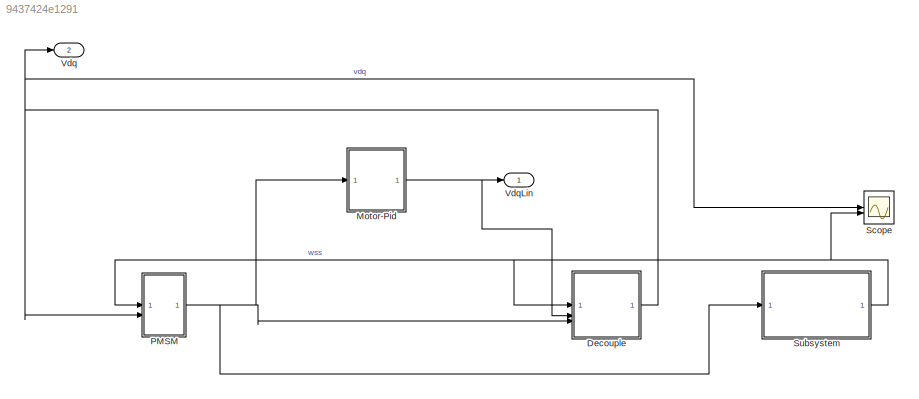
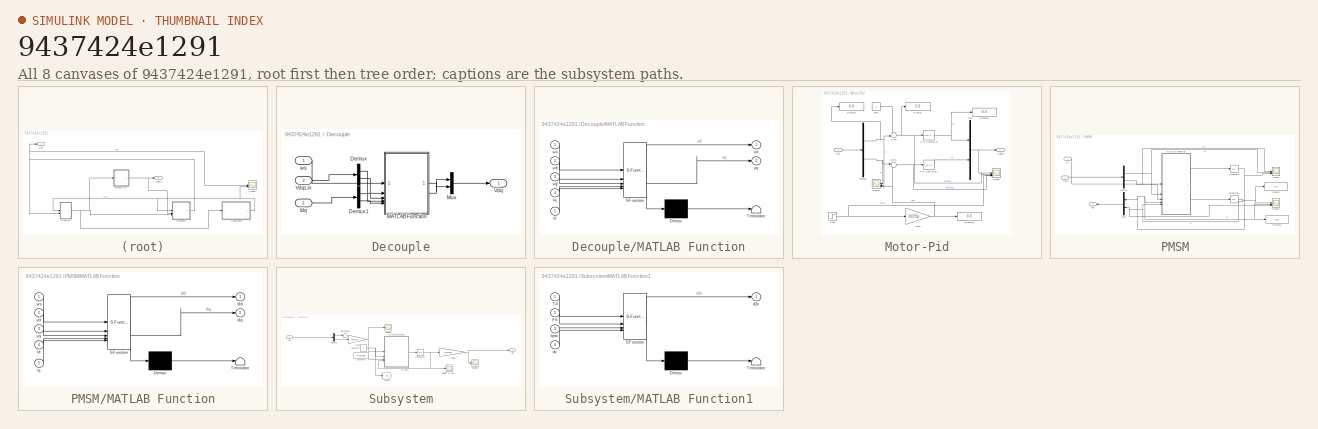
[diagram: thumbnail index - all 8 canvases of the model, root first then tree order]
MODEL slx_9437424e1291
KIND model
CONFIG AbsTol = auto
CONFIG EnableMultiTasking = off
CONFIG FixedStep = auto
CONFIG MaxStep = auto
CONFIG MinStep = auto
CONFIG RelTol = 1e-3
CONFIG SampleTimeConstraint = Unconstrained
CONFIG SolverName = VariableStepAuto
CONFIG StartTime = 0.0
CONFIG StopTime = 400
BLOCK [SubSystem] Decouple
BLOCK [Demux] Decouple/Demux
  Outputs = 2
BLOCK [Demux] Decouple/Demux1
  Outputs = 2
BLOCK [Inport] Decouple/Idq
  Port = 3
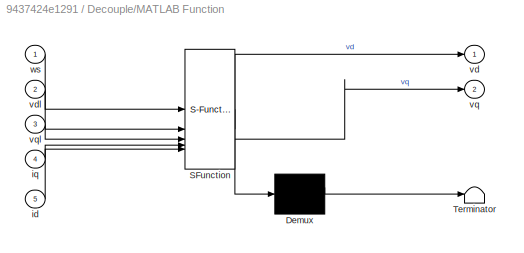
BLOCK [SubSystem] Decouple/MATLAB Function
  ErrorFcn = Stateflow.Translate.translate
  PermitHierarchicalResolution = ExplicitOnly
  SFBlockType = MATLAB Function
  TreatAsAtomicUnit = on
BLOCK [Demux] Decouple/MATLAB Function/ Demux 
  Outputs = 1
BLOCK [S-Function] Decouple/MATLAB Function/ SFunction 
  EnableBusSupport = off
  FunctionName = sf_sfun
  PortCounts = [5 3]
  SFcnIsStateOwnerBlock = off
  SFunctionDeploymentMode = off
  Tag = Stateflow S-Function 1
BLOCK [Terminator] Decouple/MATLAB Function/ Terminator 
BLOCK [Inport] Decouple/MATLAB Function/id
  Port = 5
BLOCK [Inport] Decouple/MATLAB Function/iq
  Port = 4
BLOCK [Outport] Decouple/MATLAB Function/vd
BLOCK [Inport] Decouple/MATLAB Function/vdl
  Port = 2
BLOCK [Outport] Decouple/MATLAB Function/vq
  Port = 2
BLOCK [Inport] Decouple/MATLAB Function/vql
  Port = 3
BLOCK [Inport] Decouple/MATLAB Function/ws
BLOCK [Mux] Decouple/Mux
  DisplayOption = bar
  Inputs = 2
BLOCK [Outport] Decouple/Vdq
BLOCK [Inport] Decouple/VdqLin
  Port = 2
BLOCK [Inport] Decouple/ws
BLOCK [SubSystem] Motor-Pid
BLOCK [Demux] Motor-Pid/Demux
  Outputs = 2
BLOCK [Display] Motor-Pid/Display
  Decimation = 1
BLOCK [Display] Motor-Pid/Display1
  Decimation = 1
BLOCK [Display] Motor-Pid/Display2
  Decimation = 1
BLOCK [Display] Motor-Pid/Display3
  Decimation = 1
BLOCK [Gain] Motor-Pid/Gain
  Gain = 2/(3*Zp*phi)
BLOCK [Inport] Motor-Pid/Idq
BLOCK [Mux] Motor-Pid/Mux
  DisplayOption = bar
  Inputs = 2
BLOCK [Reference] Motor-Pid/PID Controller  REF=slpidlib/PID Controller
  LibrarySourceBlock = simulink/Continuous/PID Controller
  SourceBlock = slpidlib/PID Controller
  SourceType = PID 1dof
BLOCK [Reference] Motor-Pid/PID Controller1  REF=slpidlib/PID Controller
  LibrarySourceBlock = simulink/Continuous/PID Controller
  SourceBlock = slpidlib/PID Controller
  SourceType = PID 1dof
BLOCK [Scope] Motor-Pid/Scope
  ActiveDisplayYMaximum = 1
  ActiveDisplayYMinimum = -1
  Floating = off
  GraphicalSettings = {"Style":{"BackgroundColor":[0.12941176470588237,0.12941176470588237,0.12941176470588237],"AxesColor":[0.07058823529411765,0.07058823529411765,0.07058823529411765],"LabelsColor":[0.8509803921568627,0.8509803921568627,0.8509803921568627],"PreserveColors":false,"Visible":[true,true,true,true,true],"LineStyle":["-","-","-","-","-"],"LineWidth":[1.5,1.5,1.5,1.5,1.5],"BarWidth":[0.9,0.9,0.9,0.9,0.9],"L...<+2340ch>
  MultipleDisplayCache = [{"MaxYLimMag":1,"MaxYLimReal":1,"MinYLimMag":0,"MinYLimReal":-1,"PlotAsMagnitudePhase":false,"ShowGrid":true,"ShowLegend":true,"Title":"%<SignalLabel>","YLabel":""}]
  NumInputPorts = 4
  ScopeFrameLocation = window
  ShowLegend = on
  WasSavedAsWebScope = on
  WindowPosition = [1.000000,49.000000,1536.000000,793.000000,]
BLOCK [Scope] Motor-Pid/Scope1
  ActiveDisplayYMaximum = 1.0958441708195967
  ActiveDisplayYMinimum = -0.12860472493269859
  DataLoggingVariableName = ScopeData1
  Floating = off
  GraphicalSettings = {"Style":{"BackgroundColor":[0.12941176470588237,0.12941176470588237,0.12941176470588237],"AxesColor":[0.07058823529411765,0.07058823529411765,0.07058823529411765],"LabelsColor":[0.8509803921568627,0.8509803921568627,0.8509803921568627],"PreserveColors":false,"Visible":[true,true,true],"LineStyle":["-","-","-"],"LineWidth":[1.5,1.5,1.5],"BarWidth":[0.9,0.9,0.9],"LineColor":["auto","auto","auto"],"...<+2200ch>
  MultipleDisplayCache = [{"MaxYLimMag":1.1011721979163971,"MaxYLimReal":1.0958441708195967,"MinYLimMag":0,"MinYLimReal":-0.12860472493269859,"PlotAsMagnitudePhase":false,"ShowGrid":true,"ShowLegend":true,"Title":"%<SignalLabel>","YLabel":""}]
  NumInputPorts = 3
  ScopeFrameLocation = window
  ShowLegend = on
  WasSavedAsWebScope = on
  WindowPosition = [1.000000,49.000000,1536.000000,793.000000,]
BLOCK [Step] Motor-Pid/Step
  SampleTime = 0
BLOCK [Sum] Motor-Pid/Sum
  Inputs = +-|
BLOCK [Sum] Motor-Pid/Sum1
  Inputs = |-+
BLOCK [Outport] Motor-Pid/VdqLin
BLOCK [Constant] Motor-Pid/Zero
  OutDataTypeStr = Inherit: Inherit via back propagation
  Value = 0
BLOCK [SubSystem] PMSM
BLOCK [Demux] PMSM/Demux
  Outputs = 2
BLOCK [Display] PMSM/Display
  Decimation = 1
BLOCK [Display] PMSM/Display1
  Decimation = 1
BLOCK [Outport] PMSM/Idq
BLOCK [Integrator] PMSM/Integrator
BLOCK [Integrator] PMSM/Integrator1
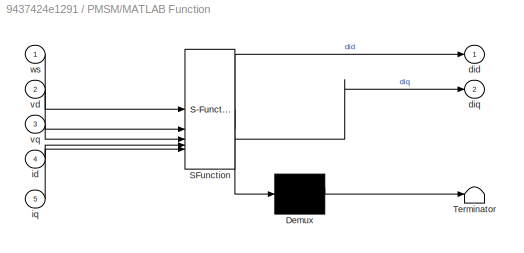
BLOCK [SubSystem] PMSM/MATLAB Function
  ErrorFcn = Stateflow.Translate.translate
  PermitHierarchicalResolution = ExplicitOnly
  SFBlockType = MATLAB Function
  TreatAsAtomicUnit = on
BLOCK [Demux] PMSM/MATLAB Function/ Demux 
  Outputs = 1
BLOCK [S-Function] PMSM/MATLAB Function/ SFunction 
  EnableBusSupport = off
  FunctionName = sf_sfun
  PortCounts = [5 3]
  SFcnIsStateOwnerBlock = off
  SFunctionDeploymentMode = off
  Tag = Stateflow S-Function 2
BLOCK [Terminator] PMSM/MATLAB Function/ Terminator 
BLOCK [Outport] PMSM/MATLAB Function/did
BLOCK [Outport] PMSM/MATLAB Function/diq
  Port = 2
BLOCK [Inport] PMSM/MATLAB Function/id
  Port = 4
BLOCK [Inport] PMSM/MATLAB Function/iq
  Port = 5
BLOCK [Inport] PMSM/MATLAB Function/vd
  Port = 2
BLOCK [Inport] PMSM/MATLAB Function/vq
  Port = 3
BLOCK [Inport] PMSM/MATLAB Function/ws
BLOCK [Mux] PMSM/Mux
  DisplayOption = bar
  Inputs = 2
BLOCK [Scope] PMSM/Scope
  ActiveDisplayYMaximum = 0.89752600112387948
  ActiveDisplayYMinimum = -0.89375469680335762
  Floating = off
  GraphicalSettings = {"Style":{"BackgroundColor":[0.12941176470588237,0.12941176470588237,0.12941176470588237],"AxesColor":[0.07058823529411765,0.07058823529411765,0.07058823529411765],"LabelsColor":[0.8509803921568627,0.8509803921568627,0.8509803921568627],"PreserveColors":false,"Visible":[true,true,true],"LineStyle":["-","-","-"],"LineWidth":[1.5,1.5,1.5],"BarWidth":[0.9,0.9,0.9],"LineColor":["auto","auto","auto"],"...<+2162ch>
  MultipleDisplayCache = [{"MaxYLimMag":1,"MaxYLimReal":0.89752600112387948,"MinYLimMag":0,"MinYLimReal":-0.89375469680335762,"PlotAsMagnitudePhase":false,"ShowGrid":true,"ShowLegend":true,"Title":"%<SignalLabel>","YLabel":""}]
  NumInputPorts = 3
  ScopeFrameLocation = window
  ShowLegend = on
  WasSavedAsWebScope = on
  WindowPosition = [0.000000,36.000000,1536.000000,793.000000,]
BLOCK [Scope] PMSM/Scope1
  ActiveDisplayYMaximum = 1
  ActiveDisplayYMinimum = -1
  DataLoggingVariableName = ScopeData1
  Floating = off
  GraphicalSettings = {"Style":{"BackgroundColor":[0.12941176470588237,0.12941176470588237,0.12941176470588237],"AxesColor":[0.07058823529411765,0.07058823529411765,0.07058823529411765],"LabelsColor":[0.8509803921568627,0.8509803921568627,0.8509803921568627],"PreserveColors":false,"Visible":[true,true,true],"LineStyle":["-","-","-"],"LineWidth":[1.5,1.5,1.5],"BarWidth":[0.9,0.9,0.9],"LineColor":["auto","auto","auto"],"...<+2199ch>
  MultipleDisplayCache = [{"MaxYLimMag":1,"MaxYLimReal":1,"MinYLimMag":0,"MinYLimReal":-1,"PlotAsMagnitudePhase":false,"ShowGrid":true,"ShowLegend":false,"Title":"%<SignalLabel>","YLabel":""}]
  NumInputPorts = 3
  ScopeFrameLocation = window
  WasSavedAsWebScope = on
  WindowPosition = [1.000000,49.000000,1536.000000,793.000000,]
BLOCK [Inport] PMSM/Vdq
  Port = 2
BLOCK [Inport] PMSM/ws
BLOCK [Scope] Scope
  ActiveDisplayYMaximum = 1
  ActiveDisplayYMinimum = -1
  DataLoggingVariableName = ScopeData2
  Floating = off
  GraphicalSettings = {"Style":{"BackgroundColor":[0.12941176470588237,0.12941176470588237,0.12941176470588237],"AxesColor":[0.07058823529411765,0.07058823529411765,0.07058823529411765],"LabelsColor":[0.8509803921568627,0.8509803921568627,0.8509803921568627],"PreserveColors":false,"Visible":[false,true,true],"LineStyle":["-","-","-"],"LineWidth":[1.5,1.5,1.5],"BarWidth":[0.9,0.9,0.9],"LineColor":["auto","auto","auto"],...<+2206ch>
  MultipleDisplayCache = [{"MaxYLimMag":1,"MaxYLimReal":1,"MinYLimMag":0,"MinYLimReal":-1,"PlotAsMagnitudePhase":false,"ShowGrid":true,"ShowLegend":true,"Title":"%<SignalLabel>","YLabel":""}]
  NumInputPorts = 2
  ScopeFrameLocation = window
  ShowLegend = on
  WasSavedAsWebScope = on
  WindowPosition = [523.000000,123.000000,560.000000,420.000000,]
BLOCK [SubSystem] Subsystem
BLOCK [Constant] Subsystem/Constant
  Value = 0
BLOCK [Constant] Subsystem/Constant1
  Value = 0*(pi/180)
BLOCK [Demux] Subsystem/Demux
  Outputs = 2
BLOCK [Gain] Subsystem/Gain
  Gain = (3/2)*Zp*phi
BLOCK [Gain] Subsystem/Gain1
  Gain = (ig/Reff)*Zp
BLOCK [Goto] Subsystem/Goto
  GotoTag = Fb
  TagVisibility = global
BLOCK [Inport] Subsystem/Idq
BLOCK [Integrator] Subsystem/Integrator
BLOCK [SubSystem] Subsystem/MATLAB Function1
  ErrorFcn = Stateflow.Translate.translate
  PermitHierarchicalResolution = ExplicitOnly
  SFBlockType = MATLAB Function
  TreatAsAtomicUnit = on
BLOCK [Demux] Subsystem/MATLAB Function1/ Demux 
  Outputs = 1
BLOCK [S-Function] Subsystem/MATLAB Function1/ SFunction 
  EnableBusSupport = off
  FunctionName = sf_sfun
  PortCounts = [4 2]
  SFcnIsStateOwnerBlock = off
  SFunctionDeploymentMode = off
  Tag = Stateflow S-Function 4
BLOCK [Terminator] Subsystem/MATLAB Function1/ Terminator 
BLOCK [Inport] Subsystem/MATLAB Function1/Fb
  Port = 2
BLOCK [Inport] Subsystem/MATLAB Function1/Td
BLOCK [Inport] Subsystem/MATLAB Function1/beta
  Port = 3
BLOCK [Outport] Subsystem/MATLAB Function1/d2x
BLOCK [Inport] Subsystem/MATLAB Function1/dx
  Port = 4
BLOCK [Scope] Subsystem/Scope1
  ActiveDisplayYMaximum = 533.4162
  ActiveDisplayYMinimum = -60.1429
  DataLoggingVariableName = ScopeData1
  Floating = off
  GraphicalSettings = {"GraphicalSettings":{"LegacySettings":true,"Style":{"AxesScalingProperties":{"AlignXAxis":"Center","AlignYAxis":"Center","AutoScaleXAxisLimits":true,"AxesScaling":"Manual","AxesScalingNumUpdates":10,"ScaleAxesLimitsAtStop":true,"XAxisDataRange":100,"YAxisDataRange":80},"Style":{"AxesColor":"[0 0 0]","ChannelNames":[""],"ColorOrder":"[1 0.909803921568627 0.392156862745098;0.149019607843137 0.54901...<+675ch>
  LayoutDimensionsString = [1 1]
  MultipleDisplayCache = [{"MaxYLimMag":533.4162,"MaxYLimReal":533.4162,"MinYLimMag":0,"MinYLimReal":-60.1429,"PlotAsMagnitudePhase":false,"ShowGrid":true,"ShowLegend":false,"Title":"%<SignalLabel>","YLabel":""}]
  NumInputPorts = 1
  WasSavedAsWebScope = on
  WindowPosition = [1 49 1366 643]
BLOCK [Scope] Subsystem/Scope2
  ActiveDisplayYMaximum = 6837.0447028710169
  ActiveDisplayYMinimum = -759.67165918570618
  DataLoggingVariableName = ScopeData4
  Floating = off
  GraphicalSettings = {"Style":{"BackgroundColor":[0.12549019607843137,0.12549019607843137,0.12549019607843137],"AxesColor":[0.06666666666666667,0.06666666666666667,0.06666666666666667],"LabelsColor":[0.8509803921568627,0.8509803921568627,0.8509803921568627],"PreserveColors":false,"Visible":[true],"LineStyle":["-"],"LineWidth":[1.5],"BarWidth":[0.9],"LineColor":["auto"],"LineFaceAlpha":[1],"LineEdgeAlpha":[1],"Marker":...<+1986ch>
  LayoutDimensionsString = [1 1]
  MultipleDisplayCache = [{"MaxYLimMag":6837.0447028710169,"MaxYLimReal":6837.0447028710169,"MinYLimMag":0,"MinYLimReal":-759.67165918570618,"PlotAsMagnitudePhase":false,"ShowGrid":true,"ShowLegend":false,"Title":"%<SignalLabel>","YLabel":""}]
  NumInputPorts = 1
  ScopeFrameLocation = window
  WasSavedAsWebScope = on
  WindowPosition = [0.000000,35.000000,1707.000000,996.000000,]
BLOCK [Terminator] Subsystem/Terminator
BLOCK [Scope] Subsystem/Velocity of Car A
  ActiveDisplayYMaximum = 51.357109308032818
  ActiveDisplayYMinimum = -5.7063552940319857
  DisplayFullPath = on
  Floating = off
  GraphicalSettings = {"Style":{"BackgroundColor":[1,1,1],"AxesColor":[1,1,1],"LabelsColor":[0.1450980392156863,0.1450980392156863,0.1450980392156863],"PreserveColors":false,"Visible":[true],"LineStyle":["-"],"LineWidth":[2],"BarWidth":[0.9],"LineColor":[[0.06666666666666667,0.44313725490196076,0.7450980392156863]],"LineFaceAlpha":[1],"LineEdgeAlpha":[1],"Marker":["none"],"FontSize":8.5,"LineTrueColor":[[0.066666666666...<+1965ch>
  LayoutDimensionsString = [1 1]
  MultipleDisplayCache = [{"MaxYLimMag":51.357109308032818,"MaxYLimReal":51.357109308032818,"MinYLimMag":0,"MinYLimReal":-5.7063552940319857,"PlotAsMagnitudePhase":false,"ShowGrid":true,"ShowLegend":true,"Title":"%<SignalLabel>","YLabel":""}]
  NumInputPorts = 1
  ScopeFrameLocation = window
  ShowLegend = on
  TimeSpanOverrunAction = Scroll
  WasSavedAsWebScope = on
  WindowPosition = [-77.000000,-58.000000,1539.000000,844.000000,]
BLOCK [Outport] Subsystem/ws
BLOCK [Outport] Vdq
  Port = 2
BLOCK [Outport] VdqLin
LINE Decouple/Demux1:1 -> Decouple/MATLAB Function:4
LINE Decouple/Demux1:2 -> Decouple/MATLAB Function:5
LINE Decouple/Demux:1 -> Decouple/MATLAB Function:2
LINE Decouple/Demux:2 -> Decouple/MATLAB Function:3
LINE Decouple/Idq:1 -> Decouple/Demux1:1
LINE Decouple/MATLAB Function:1 -> Decouple/Mux:1
LINE Decouple/MATLAB Function:2 -> Decouple/Mux:2
LINE Decouple/Mux:1 -> Decouple/Vdq:1
LINE Decouple/VdqLin:1 -> Decouple/Demux:1
LINE Decouple/ws:1 -> Decouple/MATLAB Function:1
NET Decouple:1 -> PMSM:2, Scope:1, Vdq:1
NET Motor-Pid/Demux:1 -> Motor-Pid/Display2:1, Motor-Pid/Scope1:2, Motor-Pid/Sum:2
NET Motor-Pid/Demux:2 -> Motor-Pid/Scope1:1, Motor-Pid/Sum1:1
NET Motor-Pid/Gain:1 -> Motor-Pid/Display3:1, Motor-Pid/Scope1:3, Motor-Pid/Sum1:2
LINE Motor-Pid/Idq:1 -> Motor-Pid/Demux:1
NET Motor-Pid/Mux:1 -> Motor-Pid/Scope:1, Motor-Pid/VdqLin:1
LINE Motor-Pid/PID Controller1:1 -> Motor-Pid/Mux:2
NET Motor-Pid/PID Controller:1 -> Motor-Pid/Display1:1, Motor-Pid/Mux:1
NET Motor-Pid/Step:1 -> Motor-Pid/Gain:1, Motor-Pid/Scope:3
NET Motor-Pid/Sum1:1 -> Motor-Pid/PID Controller1:1, Motor-Pid/Scope:4
NET Motor-Pid/Sum:1 -> Motor-Pid/Display:1, Motor-Pid/PID Controller:1, Motor-Pid/Scope:2
LINE Motor-Pid/Zero:1 -> Motor-Pid/Sum:1
NET Motor-Pid:1 -> Decouple:2, VdqLin:1
NET PMSM/Demux:1 -> PMSM/MATLAB Function:2, PMSM/Scope:2
NET PMSM/Demux:2 -> PMSM/MATLAB Function:3, PMSM/Scope:1
NET PMSM/Integrator1:1 -> PMSM/Display:1, PMSM/MATLAB Function:5, PMSM/Mux:2, PMSM/Scope1:1, PMSM/Scope1:3
NET PMSM/Integrator:1 -> PMSM/Display1:1, PMSM/MATLAB Function:4, PMSM/Mux:1, PMSM/Scope1:2, PMSM/Scope:3
LINE PMSM/MATLAB Function:1 -> PMSM/Integrator:1
LINE PMSM/MATLAB Function:2 -> PMSM/Integrator1:1
LINE PMSM/Mux:1 -> PMSM/Idq:1
LINE PMSM/Vdq:1 -> PMSM/Demux:1
LINE PMSM/ws:1 -> PMSM/MATLAB Function:1
NET PMSM:1 -> Decouple:3, Motor-Pid:1, Subsystem:1
LINE Subsystem/Constant1:1 -> Subsystem/MATLAB Function1:3
NET Subsystem/Constant:1 -> Subsystem/Goto:1, Subsystem/MATLAB Function1:2
LINE Subsystem/Demux:1 -> Subsystem/Terminator:1
LINE Subsystem/Demux:2 -> Subsystem/Gain:1
NET Subsystem/Gain1:1 -> Subsystem/Scope2:1, Subsystem/ws:1
NET Subsystem/Gain:1 -> Subsystem/MATLAB Function1:1, Subsystem/Scope1:1
LINE Subsystem/Idq:1 -> Subsystem/Demux:1
NET Subsystem/Integrator:1 -> Subsystem/Gain1:1, Subsystem/MATLAB Function1:4, Subsystem/Velocity of Car A:1
LINE Subsystem/MATLAB Function1:1 -> Subsystem/Integrator:1
NET Subsystem:1 -> Decouple:1, PMSM:1, Scope:2
note: NET lines group one-source signal fan-out (src -> all destinations, sorted); 1:1 wires keep LINE
CHART Decouple/MATLAB Function states=1 transitions=1
  STATE_LABEL 'eML_blk_kernel()'
  STATE_LABEL 'SCRIPT:\nfunction [vd,vq]= decouple(ws,vdl,vql,iq,id)\nLd = 1e-4;\nLq = 1e-3;\nphi = 0.23;\nvd = -ws*Lq*iq + vdl*Ld;\nvq = ws*phi + ws*Ld*id + vql*Lq;\n\n'
CHART PMSM/MATLAB Function states=1 transitions=1
  STATE_LABEL 'eML_blk_kernel()'
  STATE_LABEL 'SCRIPT:\nfunction [did,diq] = fcn(ws,vd,vq,id,iq)\nLd=1e-4;\nLq=1e-3;\nRs=0.00475;\nphi=0.23;\ndid=ws*(Lq/Ld)*iq-(Rs/Ld)*id+(1/Ld)*vd;\ndiq=-ws*(1/Lq)*phi-ws*(Ld/Lq)*id-(Rs/Lq)*iq+(1/Lq)*vq;\n\n'
CHART Subsystem/MATLAB Function1 states=1 transitions=1
  STATE_LABEL 'eML_blk_kernel()'
  STATE_LABEL 'SCRIPT:\nfunction d2x = fcn(Td,Fb,beta,dx)\nm=1992;\nReff=0.2413;\nig=9;\nCR=0.0004;\nCW=0.23;\ng=9.81;\nA=3.45;\nRho=1.1839;\nTw = ig*Td;\nd2x = ((1/(m*Reff))*Tw)-CR*g*cos(beta)-((1/2)*CW*A*Rho*(dx.^2))/m-g*sin(beta)-(1/m)*Fb;\n    '
CHART  states=0 transitions=0
CHART  states=0 transitions=0
CHART  states=0 transitions=0
